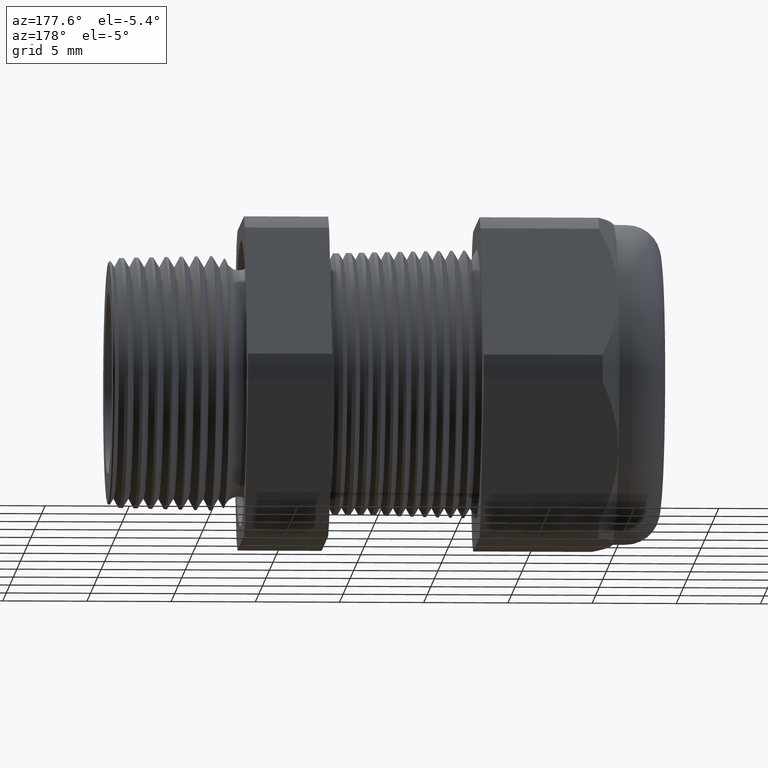
[diagram: clean part render]
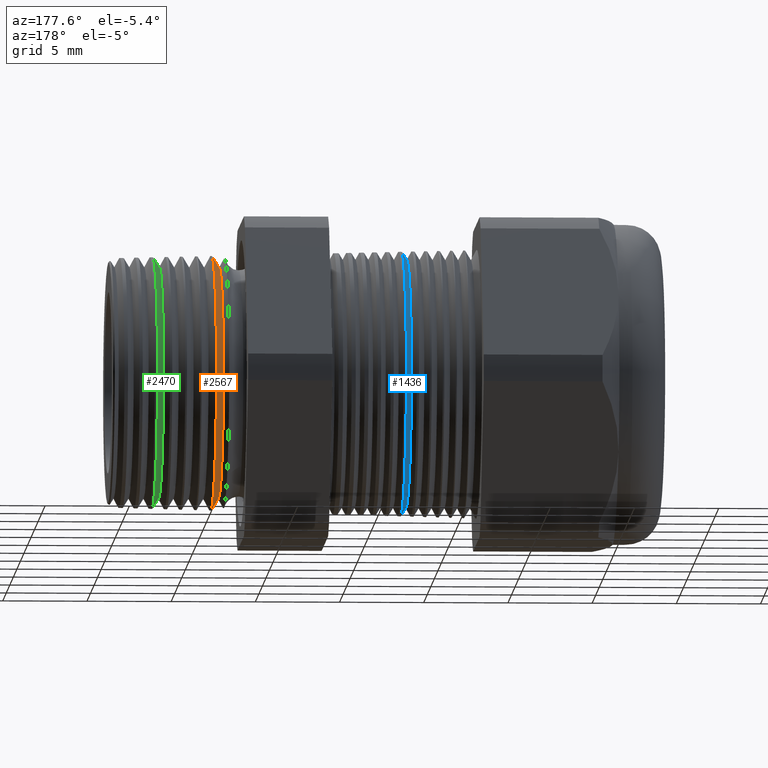
[diagram: same view with three faces highlighted in distinct colors, each labeled with its STEP entity id]
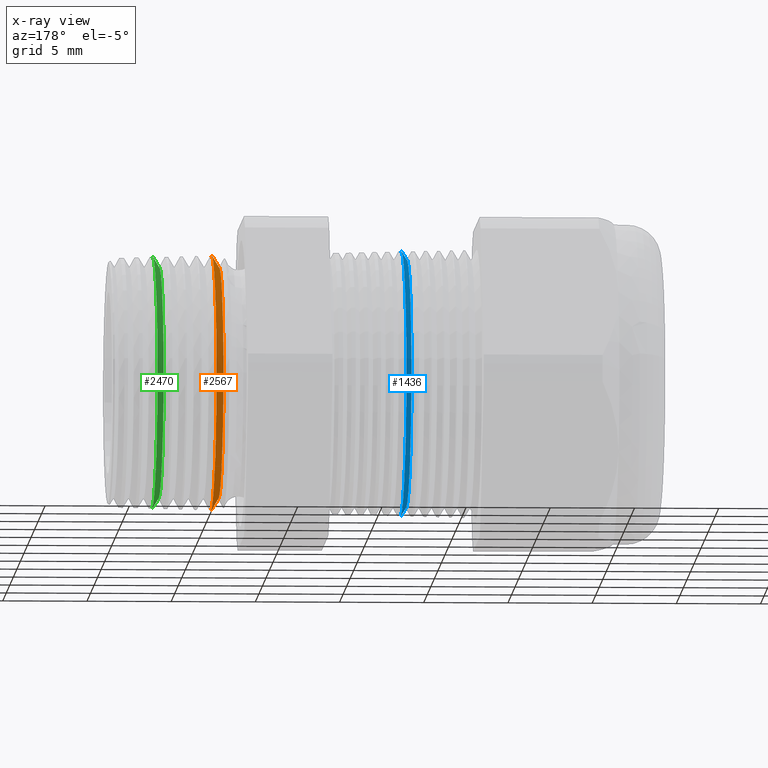
[diagram: x-ray of the same camera — body ghosted, the three highlighted faces saturated]
A machine part, auxiliary view with three faces highlighted in distinct colors.
The next image is the same camera in x-ray (body ghosted, the three faces saturated) — at least one of them is partly hidden behind the body in this view.
Their STEP definitions:

[orange] entity #2567 — the highlighted conical surface has half-angle 58.5 deg.
#485 = DIRECTION ( 'NONE',  ( 1.000000000000000000, 0.0000000000000000000, 0.0000000000000000000 ) ) ;
#486 = CARTESIAN_POINT ( 'NONE',  ( -0.2584707356790751900, 0.0000000000000000000, 0.0000000000000000000 ) ) ;
#487 = AXIS2_PLACEMENT_3D ( 'NONE', #486, #485, #546 ) ;
#488 = CIRCLE ( 'NONE', #487, 0.2701319446236517000 ) ;
#489 = CARTESIAN_POINT ( 'NONE',  ( -0.2584707356790751900, 3.447728831238841300E-017, -0.2701319446236517000 ) ) ;
#490 = DIRECTION ( 'NONE',  ( 0.0000000000000000000, 0.0000000000000000000, -1.000000000000000000 ) ) ;
#491 = DIRECTION ( 'NONE',  ( 1.000000000000000000, 0.0000000000000000000, 0.0000000000000000000 ) ) ;
#492 = CARTESIAN_POINT ( 'NONE',  ( -0.2584707356790751900, 0.0000000000000000000, 0.0000000000000000000 ) ) ;
#493 = AXIS2_PLACEMENT_3D ( 'NONE', #492, #491, #490 ) ;
#494 = CONICAL_SURFACE ( 'NONE', #493, 0.2701319446236517000, 1.021017612416701600 ) ;
#495 = FACE_OUTER_BOUND ( 'NONE', #2568, .T. ) ;
#534 = CARTESIAN_POINT ( 'NONE',  ( -0.2409236207239137100, 3.658831118766484200E-017, -0.2987662337674752400 ) ) ;
#535 = DIRECTION ( 'NONE',  ( 0.0000000000000000000, 0.0000000000000000000, -1.000000000000000000 ) ) ;
#536 = DIRECTION ( 'NONE',  ( -1.000000000000000000, 0.0000000000000000000, 0.0000000000000000000 ) ) ;
#537 = CARTESIAN_POINT ( 'NONE',  ( -0.2409236207239137100, 0.0000000000000000000, 0.0000000000000000000 ) ) ;
#538 = AXIS2_PLACEMENT_3D ( 'NONE', #537, #536, #535 ) ;
#539 = CIRCLE ( 'NONE', #538, 0.2987662337674752400 ) ;
#540 = CARTESIAN_POINT ( 'NONE',  ( -0.2409236207239137100, 0.0000000000000000000, 0.2987662337674752400 ) ) ;
#541 = DIRECTION ( 'NONE',  ( 0.5224985647159328100, 1.044183048100724200E-016, 0.8526401643541021700 ) ) ;
#542 = VECTOR ( 'NONE', #541, 39.37007874015748100 ) ;
#543 = CARTESIAN_POINT ( 'NONE',  ( -0.2584707356790751900, 3.308162213308051400E-017, 0.2701319446236517000 ) ) ;
#544 = LINE ( 'NONE', #543, #542 ) ;
#545 = CARTESIAN_POINT ( 'NONE',  ( -0.2584707356790751900, 0.0000000000000000000, 0.2701319446236517000 ) ) ;
#546 = DIRECTION ( 'NONE',  ( 0.0000000000000000000, 0.0000000000000000000, -1.000000000000000000 ) ) ;
#673 = DIRECTION ( 'NONE',  ( 0.5224985647159328100, 0.0000000000000000000, -0.8526401643541021700 ) ) ;
#674 = VECTOR ( 'NONE', #673, 39.37007874015748100 ) ;
#675 = CARTESIAN_POINT ( 'NONE',  ( -0.2584707356790751900, 0.0000000000000000000, -0.2701319446236517000 ) ) ;
#676 = LINE ( 'NONE', #675, #674 ) ;
#2567 = ADVANCED_FACE ( 'NONE', ( #495 ), #494, .T. ) ;
#2568 = EDGE_LOOP ( 'NONE', ( #2570, #2573, #2576, #2666 ) ) ;
#2569 = VERTEX_POINT ( 'NONE', #489 ) ;
#2570 = ORIENTED_EDGE ( 'NONE', *, *, #2571, .T. ) ;
#2571 = EDGE_CURVE ( 'NONE', #2569, #2572, #488, .T. ) ;
#2572 = VERTEX_POINT ( 'NONE', #545 ) ;
#2573 = ORIENTED_EDGE ( 'NONE', *, *, #2574, .T. ) ;
#2574 = EDGE_CURVE ( 'NONE', #2572, #2575, #544, .T. ) ;
#2575 = VERTEX_POINT ( 'NONE', #540 ) ;
#2576 = ORIENTED_EDGE ( 'NONE', *, *, #2577, .T. ) ;
#2577 = EDGE_CURVE ( 'NONE', #2575, #2578, #539, .T. ) ;
#2578 = VERTEX_POINT ( 'NONE', #534 ) ;
#2662 = EDGE_CURVE ( 'NONE', #2569, #2578, #676, .T. ) ;
#2666 = ORIENTED_EDGE ( 'NONE', *, *, #2662, .F. ) ;

[blue] entity #1436 — the highlighted conical surface has half-angle 58.5 deg.
#1388 = ORIENTED_EDGE ( 'NONE', *, *, #1389, .F. ) ;
#1389 = EDGE_CURVE ( 'NONE', #1394, #1434, #3367, .T. ) ;
#1391 = VERTEX_POINT ( 'NONE', #3357 ) ;
#1392 = ORIENTED_EDGE ( 'NONE', *, *, #1393, .T. ) ;
#1393 = EDGE_CURVE ( 'NONE', #1391, #1439, #3356, .T. ) ;
#1394 = VERTEX_POINT ( 'NONE', #3352 ) ;
#1395 = EDGE_LOOP ( 'NONE', ( #1437, #1392, #1440, #1388 ) ) ;
#1433 = EDGE_CURVE ( 'NONE', #1439, #1434, #3407, .T. ) ;
#1434 = VERTEX_POINT ( 'NONE', #3402 ) ;
#1436 = ADVANCED_FACE ( 'NONE', ( #3401 ), #3400, .T. ) ;
#1437 = ORIENTED_EDGE ( 'NONE', *, *, #1438, .T. ) ;
#1438 = EDGE_CURVE ( 'NONE', #1394, #1391, #3456, .T. ) ;
#1439 = VERTEX_POINT ( 'NONE', #3451 ) ;
#1440 = ORIENTED_EDGE ( 'NONE', *, *, #1433, .T. ) ;
#3352 = CARTESIAN_POINT ( 'NONE',  ( -0.6970917547981793100, 3.677897204110165000E-017, -0.2896307351718082600 ) ) ;
#3353 = DIRECTION ( 'NONE',  ( 0.5224985647159348100, 1.044183048100722500E-016, 0.8526401643541007300 ) ) ;
#3354 = VECTOR ( 'NONE', #3353, 39.37007874015748900 ) ;
#3355 = CARTESIAN_POINT ( 'NONE',  ( -0.6970917547981793100, 3.546953527628497700E-017, 0.2896307351718082600 ) ) ;
#3356 = LINE ( 'NONE', #3355, #3354 ) ;
#3357 = CARTESIAN_POINT ( 'NONE',  ( -0.6970917547981793100, 0.0000000000000000000, 0.2896307351718082600 ) ) ;
#3364 = DIRECTION ( 'NONE',  ( 0.5224985647159348100, 0.0000000000000000000, -0.8526401643541007300 ) ) ;
#3365 = VECTOR ( 'NONE', #3364, 39.37007874015748900 ) ;
#3366 = CARTESIAN_POINT ( 'NONE',  ( -0.6970917547981793100, 0.0000000000000000000, -0.2896307351718082600 ) ) ;
#3367 = LINE ( 'NONE', #3366, #3365 ) ;
#3400 = CONICAL_SURFACE ( 'NONE', #3460, 0.2896307351718082600, 1.021017612416699200 ) ;
#3401 = FACE_OUTER_BOUND ( 'NONE', #1395, .T. ) ;
#3402 = CARTESIAN_POINT ( 'NONE',  ( -0.6843775187239782300, 3.801040154363096100E-017, -0.3103784827600519800 ) ) ;
#3403 = DIRECTION ( 'NONE',  ( 0.0000000000000000000, 0.0000000000000000000, -1.000000000000000000 ) ) ;
#3404 = DIRECTION ( 'NONE',  ( -1.000000000000000000, 0.0000000000000000000, 0.0000000000000000000 ) ) ;
#3405 = CARTESIAN_POINT ( 'NONE',  ( -0.6843775187239782300, 0.0000000000000000000, 0.0000000000000000000 ) ) ;
#3406 = AXIS2_PLACEMENT_3D ( 'NONE', #3405, #3404, #3403 ) ;
#3407 = CIRCLE ( 'NONE', #3406, 0.3103784827600519800 ) ;
#3451 = CARTESIAN_POINT ( 'NONE',  ( -0.6843775187239782300, 0.0000000000000000000, 0.3103784827600519800 ) ) ;
#3452 = DIRECTION ( 'NONE',  ( 0.0000000000000000000, 0.0000000000000000000, -1.000000000000000000 ) ) ;
#3453 = DIRECTION ( 'NONE',  ( 1.000000000000000000, 0.0000000000000000000, 0.0000000000000000000 ) ) ;
#3454 = CARTESIAN_POINT ( 'NONE',  ( -0.6970917547981793100, 0.0000000000000000000, 0.0000000000000000000 ) ) ;
#3455 = AXIS2_PLACEMENT_3D ( 'NONE', #3454, #3453, #3452 ) ;
#3456 = CIRCLE ( 'NONE', #3455, 0.2896307351718082600 ) ;
#3457 = DIRECTION ( 'NONE',  ( 0.0000000000000000000, 0.0000000000000000000, -1.000000000000000000 ) ) ;
#3458 = DIRECTION ( 'NONE',  ( 1.000000000000000000, 0.0000000000000000000, 0.0000000000000000000 ) ) ;
#3459 = CARTESIAN_POINT ( 'NONE',  ( -0.6970917547981793100, 0.0000000000000000000, 0.0000000000000000000 ) ) ;
#3460 = AXIS2_PLACEMENT_3D ( 'NONE', #3459, #3458, #3457 ) ;

[green] entity #2470 — the highlighted conical surface has half-angle 58.5 deg.
#297 = CARTESIAN_POINT ( 'NONE',  ( -0.1031346857808554700, 3.614644267230152500E-017, -0.2951581035239555000 ) ) ;
#298 = DIRECTION ( 'NONE',  ( 0.0000000000000000000, 0.0000000000000000000, -1.000000000000000000 ) ) ;
#299 = DIRECTION ( 'NONE',  ( -1.000000000000000000, 0.0000000000000000000, 0.0000000000000000000 ) ) ;
#300 = AXIS2_PLACEMENT_3D ( 'NONE', #306, #299, #298 ) ;
#301 = CIRCLE ( 'NONE', #300, 0.2951581035239554400 ) ;
#302 = DIRECTION ( 'NONE',  ( 0.0000000000000000000, 0.0000000000000000000, -1.000000000000000000 ) ) ;
#303 = DIRECTION ( 'NONE',  ( 1.000000000000000000, 0.0000000000000000000, 0.0000000000000000000 ) ) ;
#304 = CARTESIAN_POINT ( 'NONE',  ( -0.1184707356790751600, 0.0000000000000000000, 0.0000000000000000000 ) ) ;
#305 = AXIS2_PLACEMENT_3D ( 'NONE', #304, #303, #302 ) ;
#306 = CARTESIAN_POINT ( 'NONE',  ( -0.1031346857808554700, 0.0000000000000000000, 0.0000000000000000000 ) ) ;
#307 = CONICAL_SURFACE ( 'NONE', #305, 0.2701319446236517000, 1.021017612416701600 ) ;
#312 = FACE_OUTER_BOUND ( 'NONE', #2531, .T. ) ;
#421 = CARTESIAN_POINT ( 'NONE',  ( -0.1184707356790751600, 0.0000000000000000000, 0.2701319446236517000 ) ) ;
#422 = CARTESIAN_POINT ( 'NONE',  ( -0.1184707356790751600, 3.466107900698090200E-017, -0.2701319446236517000 ) ) ;
#423 = DIRECTION ( 'NONE',  ( 0.0000000000000000000, 0.0000000000000000000, -1.000000000000000000 ) ) ;
#424 = DIRECTION ( 'NONE',  ( 1.000000000000000000, 0.0000000000000000000, 0.0000000000000000000 ) ) ;
#425 = AXIS2_PLACEMENT_3D ( 'NONE', #431, #424, #423 ) ;
#426 = CIRCLE ( 'NONE', #425, 0.2701319446236517000 ) ;
#431 = CARTESIAN_POINT ( 'NONE',  ( -0.1184707356790751600, 0.0000000000000000000, 0.0000000000000000000 ) ) ;
#516 = DIRECTION ( 'NONE',  ( 0.5224985647159328100, 1.044183048100724200E-016, 0.8526401643541021700 ) ) ;
#517 = VECTOR ( 'NONE', #516, 39.37007874015748100 ) ;
#518 = CARTESIAN_POINT ( 'NONE',  ( -0.1184707356790751600, 3.308162213308051400E-017, 0.2701319446236517000 ) ) ;
#519 = LINE ( 'NONE', #518, #517 ) ;
#557 = DIRECTION ( 'NONE',  ( 0.5224985647159328100, 0.0000000000000000000, -0.8526401643541021700 ) ) ;
#558 = VECTOR ( 'NONE', #557, 39.37007874015748100 ) ;
#559 = CARTESIAN_POINT ( 'NONE',  ( -0.1184707356790751600, 0.0000000000000000000, -0.2701319446236517000 ) ) ;
#560 = LINE ( 'NONE', #559, #558 ) ;
#576 = CARTESIAN_POINT ( 'NONE',  ( -0.1031346857808554700, 0.0000000000000000000, 0.2951581035239555000 ) ) ;
#2470 = ADVANCED_FACE ( 'NONE', ( #312 ), #307, .T. ) ;
#2471 = ORIENTED_EDGE ( 'NONE', *, *, #2472, .T. ) ;
#2472 = EDGE_CURVE ( 'NONE', #2584, #2473, #301, .T. ) ;
#2473 = VERTEX_POINT ( 'NONE', #297 ) ;
#2531 = EDGE_LOOP ( 'NONE', ( #2532, #2582, #2471, #2592 ) ) ;
#2532 = ORIENTED_EDGE ( 'NONE', *, *, #2533, .T. ) ;
#2533 = EDGE_CURVE ( 'NONE', #2534, #2535, #426, .T. ) ;
#2534 = VERTEX_POINT ( 'NONE', #422 ) ;
#2535 = VERTEX_POINT ( 'NONE', #421 ) ;
#2582 = ORIENTED_EDGE ( 'NONE', *, *, #2583, .T. ) ;
#2583 = EDGE_CURVE ( 'NONE', #2535, #2584, #519, .T. ) ;
#2584 = VERTEX_POINT ( 'NONE', #576 ) ;
#2592 = ORIENTED_EDGE ( 'NONE', *, *, #2593, .F. ) ;
#2593 = EDGE_CURVE ( 'NONE', #2534, #2473, #560, .T. ) ;